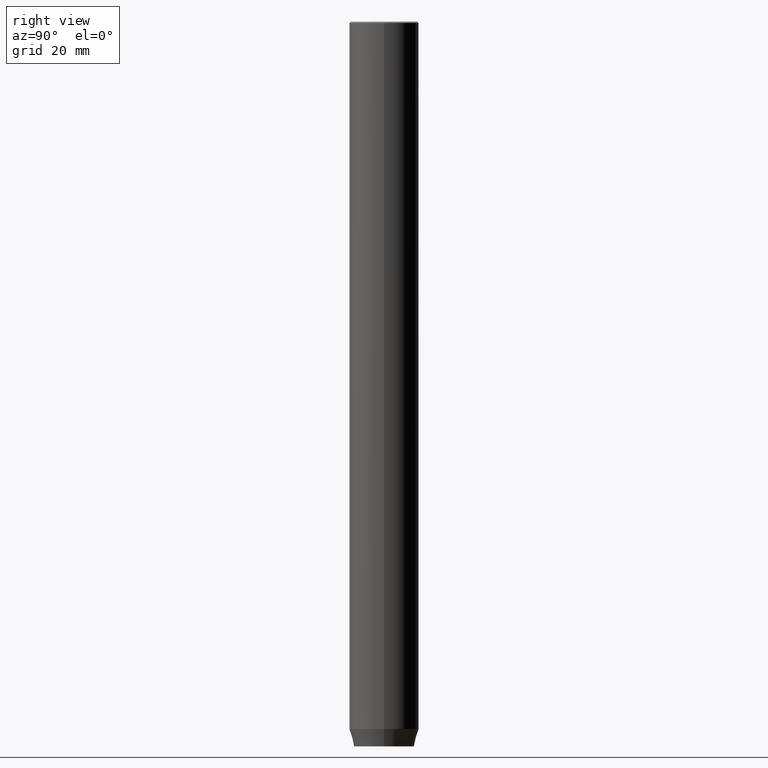
[diagram: clean part render]
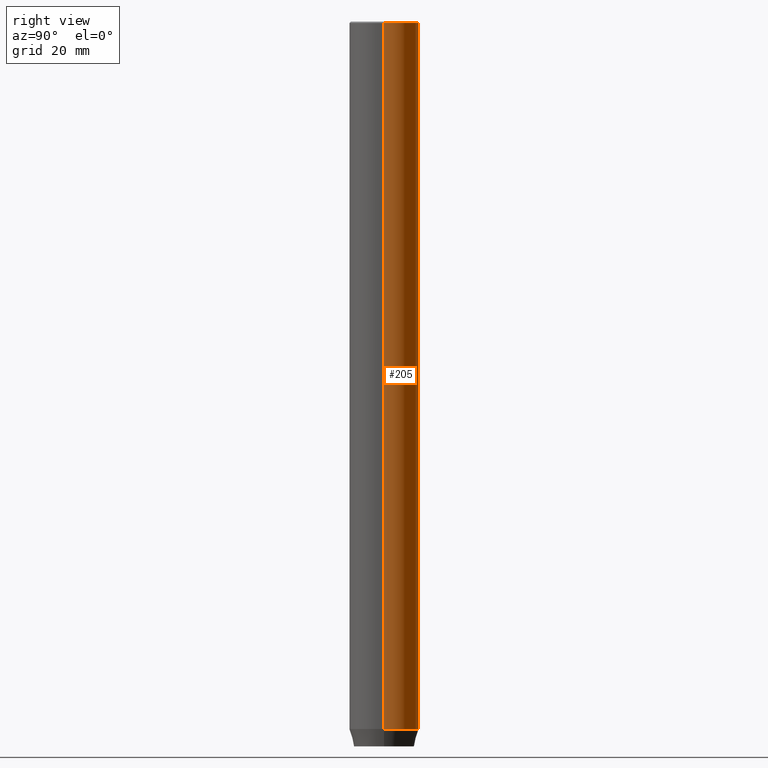
[diagram: same view with one face highlighted and labeled with its STEP entity id]
A machine part, right view. The second image highlights one B-rep face of the part: STEP entity #205.
In plain terms, the highlighted cylindrical surface (edge-blend (fillet) strip) has radius 12 mm, axis along (-0, -0, 1).
Its self-contained STEP definition (entity closure, byte-faithful):
#10 = LINE ( 'NONE', #543, #334 ) ;
#19 = ORIENTED_EDGE ( 'NONE', *, *, #500, .T. ) ;
#27 = VERTEX_POINT ( 'NONE', #374 ) ;
#68 = EDGE_CURVE ( 'NONE', #262, #27, #394, .T. ) ;
#105 = CYLINDRICAL_SURFACE ( 'NONE', #476, 12.00000000000000000 ) ;
#145 = ORIENTED_EDGE ( 'NONE', *, *, #518, .F. ) ;
#151 = EDGE_CURVE ( 'NONE', #362, #564, #569, .T. ) ;
#168 = EDGE_LOOP ( 'NONE', ( #409, #19, #483, #145 ) ) ;
#169 = VECTOR ( 'NONE', #553, 1000.000000000000000 ) ;
#205 = ADVANCED_FACE ( 'NONE', ( #601 ), #105, .T. ) ;
#262 = VERTEX_POINT ( 'NONE', #639 ) ;
#280 = DIRECTION ( 'NONE',  ( 1.000000000000000000, 0.000000000000000000, 0.000000000000000000 ) ) ;
#302 = CARTESIAN_POINT ( 'NONE',  ( 12.00000000000000000, 0.000000000000000000, -244.0000000000000000 ) ) ;
#334 = VECTOR ( 'NONE', #635, 1000.000000000000000 ) ;
#353 = DIRECTION ( 'NONE',  ( -0.000000000000000000, -0.000000000000000000, 1.000000000000000000 ) ) ;
#355 = DIRECTION ( 'NONE',  ( -0.000000000000000000, -0.000000000000000000, 1.000000000000000000 ) ) ;
#362 = VERTEX_POINT ( 'NONE', #302 ) ;
#374 = CARTESIAN_POINT ( 'NONE',  ( 12.00000000000000000, 0.000000000000000000, -0.5000000000000056621 ) ) ;
#389 = DIRECTION ( 'NONE',  ( 0.000000000000000000, 0.000000000000000000, -1.000000000000000000 ) ) ;
#394 = CIRCLE ( 'NONE', #458, 12.00000000000000000 ) ;
#409 = ORIENTED_EDGE ( 'NONE', *, *, #151, .T. ) ;
#454 = CARTESIAN_POINT ( 'NONE',  ( -12.00000000000000000, 1.469576158976823947E-15, 0.000000000000000000 ) ) ;
#457 = DIRECTION ( 'NONE',  ( 1.000000000000000000, 0.000000000000000000, 0.000000000000000000 ) ) ;
#458 = AXIS2_PLACEMENT_3D ( 'NONE', #538, #389, #280 ) ;
#476 = AXIS2_PLACEMENT_3D ( 'NONE', #593, #355, #544 ) ;
#483 = ORIENTED_EDGE ( 'NONE', *, *, #68, .T. ) ;
#488 = AXIS2_PLACEMENT_3D ( 'NONE', #599, #353, #457 ) ;
#500 = EDGE_CURVE ( 'NONE', #564, #262, #546, .T. ) ;
#518 = EDGE_CURVE ( 'NONE', #362, #27, #10, .T. ) ;
#538 = CARTESIAN_POINT ( 'NONE',  ( 0.000000000000000000, 0.000000000000000000, -0.5000000000000056621 ) ) ;
#543 = CARTESIAN_POINT ( 'NONE',  ( 12.00000000000000000, 0.000000000000000000, 0.000000000000000000 ) ) ;
#544 = DIRECTION ( 'NONE',  ( 1.000000000000000000, 0.000000000000000000, 0.000000000000000000 ) ) ;
#546 = LINE ( 'NONE', #454, #169 ) ;
#553 = DIRECTION ( 'NONE',  ( -0.000000000000000000, -0.000000000000000000, 1.000000000000000000 ) ) ;
#564 = VERTEX_POINT ( 'NONE', #566 ) ;
#566 = CARTESIAN_POINT ( 'NONE',  ( -12.00000000000000000, 1.469576158976823947E-15, -244.0000000000000000 ) ) ;
#569 = CIRCLE ( 'NONE', #488, 12.00000000000000000 ) ;
#593 = CARTESIAN_POINT ( 'NONE',  ( 0.000000000000000000, 0.000000000000000000, 0.000000000000000000 ) ) ;
#599 = CARTESIAN_POINT ( 'NONE',  ( 0.000000000000000000, 0.000000000000000000, -244.0000000000000000 ) ) ;
#601 = FACE_OUTER_BOUND ( 'NONE', #168, .T. ) ;
#635 = DIRECTION ( 'NONE',  ( -0.000000000000000000, -0.000000000000000000, 1.000000000000000000 ) ) ;
#639 = CARTESIAN_POINT ( 'NONE',  ( -12.00000000000000000, 1.469576158976823947E-15, -0.5000000000000056621 ) ) ;